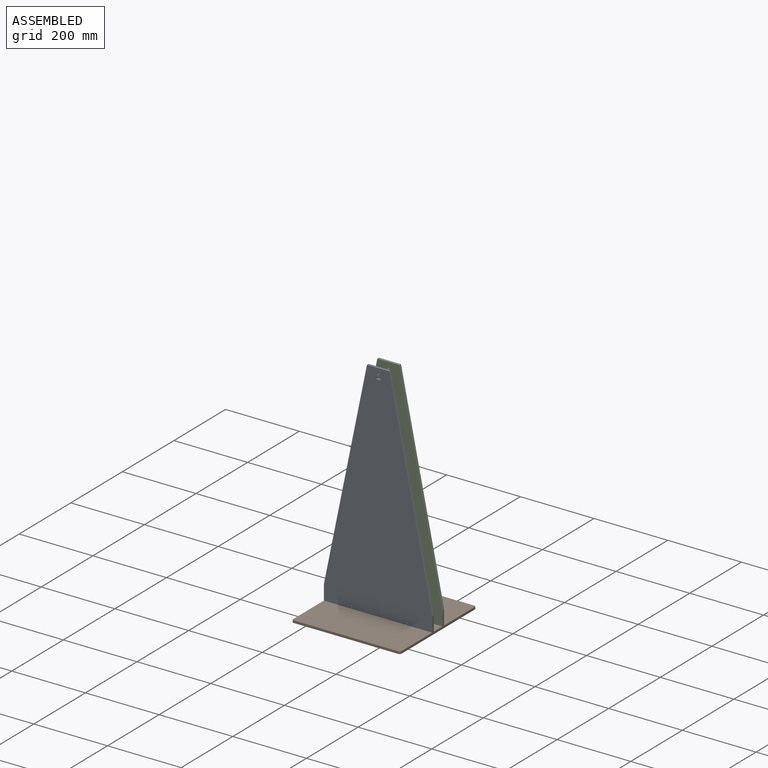
[diagram: assembled view]
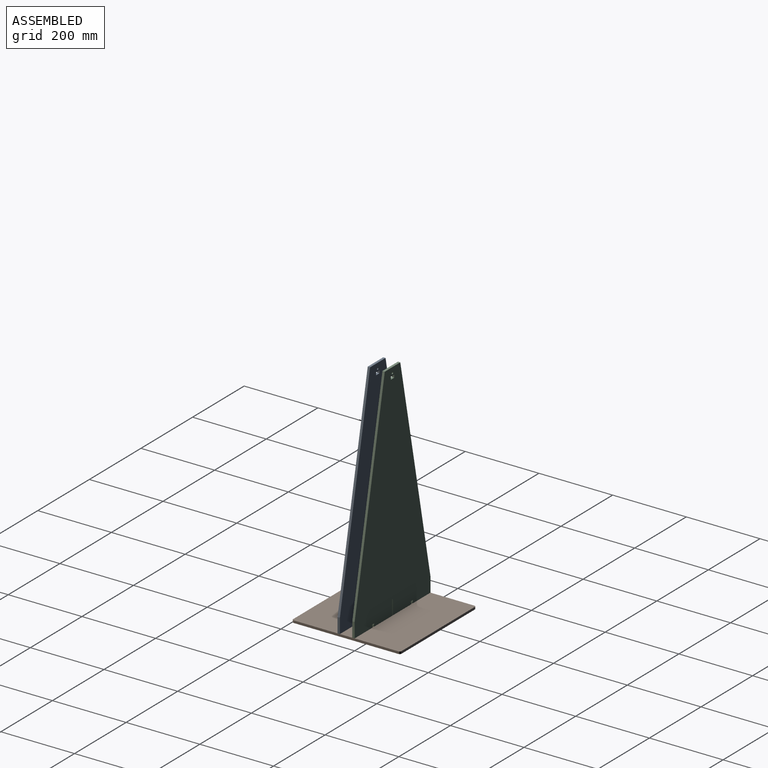
[diagram: assembled view, second angle]
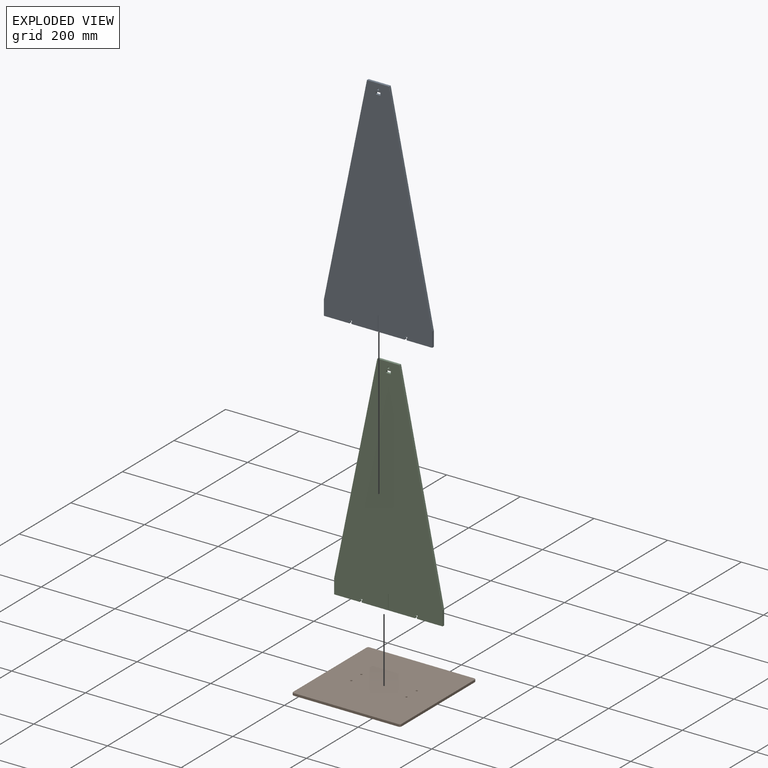
[diagram: exploded view]
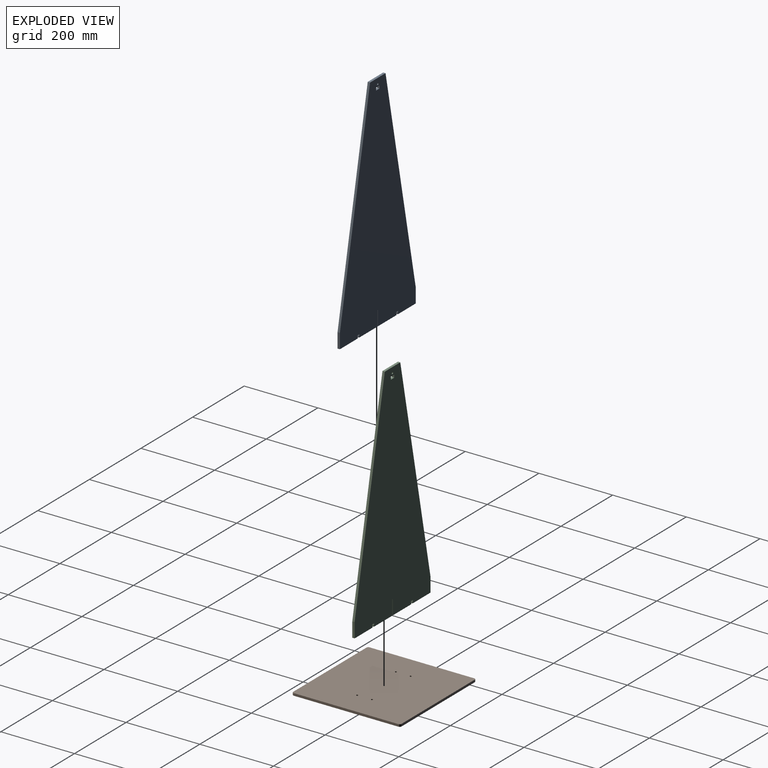
[diagram: exploded view, second angle]
ASSEMBLY  parts=3 mates=2
PART A: 33 faces, bbox 294x609.6x6.4 mm
  f0: plane 6.35x1mm, normal (0,-1,0), area 6.4mm2, adj f1,f30,f31,f32
  f1: plane 40x6.35mm, normal (-1,0,0), area 254mm2, adj f0,f2,f31,f32
  f2: plane 71.95x6.35mm, normal (0,-1,0), area 456.9mm2, adj f1,f3,f31,f32
  f3: plane 6.35x5mm, normal (1,0,0), area 31.8mm2, adj f2,f4,f31,f32
  f4: plane 6.35x1.5mm, normal (0,1,0), area 9.5mm2, adj f3,f5,f31,f32
  f5: plane 6.35x3mm, normal (1,0,0), area 19.1mm2, adj f4,f6,f31,f32
  f6: plane 8.1x6.35mm, normal (0,-1,0), area 51.4mm2, adj f5,f7,f31,f32
  f7: plane 6.35x3mm, normal (-1,0,0), area 19.1mm2, adj f6,f8,f31,f32
  f8: plane 6.35x1.5mm, normal (0,1,0), area 9.5mm2, adj f7,f9,f31,f32
  f9: plane 6.35x5mm, normal (-1,0,0), area 31.8mm2, adj f8,f10,f31,f32
  f10: plane 69.45x6.35mm, normal (0,-1,0), area 441mm2, adj f9,f11,f31,f32
  f11: plane 40x6.35mm, normal (1,0,0), area 254mm2, adj f10,f12,f31,f32
  f12: plane 569.6x117mm, normal (0.98,0.2,0), area 3692.5mm2, adj f11,f13,f31,f32
  f13: plane 60x6.35mm, normal (0,1,0), area 381mm2, adj f12,f14,f31,f32
  f14: plane 569.6x117mm, normal (-0.98,0.2,0), area 3692.5mm2, adj f13,f15,f31,f32
  f15: plane 40x6.35mm, normal (-1,0,0), area 254mm2, adj f14,f16,f31,f32
  f16: plane 69.45x6.35mm, normal (0,-1,0), area 441mm2, adj f15,f17,f31,f32
  f17: plane 6.35x5mm, normal (1,0,0), area 31.8mm2, adj f16,f18,f31,f32
  f18: plane 6.35x1.5mm, normal (0,1,0), area 9.5mm2, adj f17,f19,f31,f32
  f19: plane 6.35x3mm, normal (1,0,0), area 19.1mm2, adj f18,f20,f31,f32
  f20: plane 8.1x6.35mm, normal (0,-1,0), area 51.4mm2, adj f19,f21,f31,f32
  f21: plane 6.35x3mm, normal (-1,0,0), area 19.1mm2, adj f20,f22,f31,f32
  f22: plane 6.35x1.5mm, normal (0,1,0), area 9.5mm2, adj f21,f23,f31,f32
  f23: plane 6.35x5mm, normal (-1,0,0), area 31.8mm2, adj f22,f24,f31,f32
  f24: plane 71.95x6.35mm, normal (0,-1,0), area 456.9mm2, adj f23,f30,f31,f32
  f25: plane 7x6.35mm, normal (-1,0,0), area 44.5mm2, adj f26,f28,f31,f32
  f26: plane 13x6.35mm, normal (0,1,0), area 82.5mm2, adj f25,f27,f31,f32
  f27: plane 7x6.35mm, normal (1,0,0), area 44.5mm2, adj f26,f28,f31,f32
  f28: plane 13x6.35mm, normal (0,-1,0), area 82.5mm2, adj f25,f27,f31,f32
  f29: cylinder r=2.55mm len=6.35mm, axis (0,0,-1), area 101.7mm2, adj f31,f32
  f30: plane 40x6.35mm, normal (1,0,0), area 254mm2, adj f0,f24,f31,f32
  f31: plane 609.6x294mm, normal (0,0,1), area 112328.2mm2, adj f0,f1,f2,f3,f4,f5,f6,f7
  f32: plane 609.6x294mm, normal (0,0,-1), area 112328.2mm2, adj f0,f1,f2,f3,f4,f5,f6,f7
PART B: 14 faces, bbox 294x294x6.4 mm
  f0: plane 284x6.35mm, normal (0,-1,0), area 1803.4mm2, adj f1,f11,f12,f13
  f1: cylinder r=5mm len=6.35mm, axis (0,0,-1), area 49.9mm2, adj f0,f2,f12,f13
  f2: plane 284x6.35mm, normal (1,0,0), area 1803.4mm2, adj f1,f3,f12,f13
  f3: cylinder r=5mm len=6.35mm, axis (0,0,-1), area 49.9mm2, adj f2,f4,f12,f13
  f4: plane 284x6.35mm, normal (0,1,0), area 1803.4mm2, adj f3,f5,f12,f13
  f5: cylinder r=5mm len=6.35mm, axis (0,0,-1), area 49.9mm2, adj f4,f6,f12,f13
  f6: plane 284x6.35mm, normal (-1,0,0), area 1803.4mm2, adj f5,f11,f12,f13
  f7: cylinder r=2.55mm len=6.35mm, axis (0,0,-1), area 101.7mm2, adj f12,f13
  f8: cylinder r=2.55mm len=6.35mm, axis (0,0,-1), area 101.7mm2, adj f12,f13
  f9: cylinder r=2.55mm len=6.35mm, axis (0,0,-1), area 101.7mm2, adj f12,f13
  f10: cylinder r=2.55mm len=6.35mm, axis (0,0,-1), area 101.7mm2, adj f12,f13
  f11: cylinder r=5mm len=6.35mm, axis (0,0,-1), area 49.9mm2, adj f0,f6,f12,f13
  f12: plane 294x294mm, normal (0,0,1), area 86332.8mm2, adj f0,f1,f2,f3,f4,f5,f6,f7
  f13: plane 294x294mm, normal (0,0,-1), area 86332.8mm2, adj f0,f1,f2,f3,f4,f5,f6,f7
PART C: same geometry as A
PLACE A rot(axis=(1,0,0),90deg) t=(-55.72,363.82,475.96)mm
PLACE B t=(-56.12,380.64,164.81)mm
PLACE C rot(axis=(1,0,0),90deg) t=(-55.72,403.82,475.96)mm
MATE fastened C.f20 <-> B.f10  axis (0,0,-1) through (-131.12,400.64,179.16)mm
MATE fastened B.f9 <-> A.f24  axis (0,0,1) through (-131.12,360.64,171.16)mm
